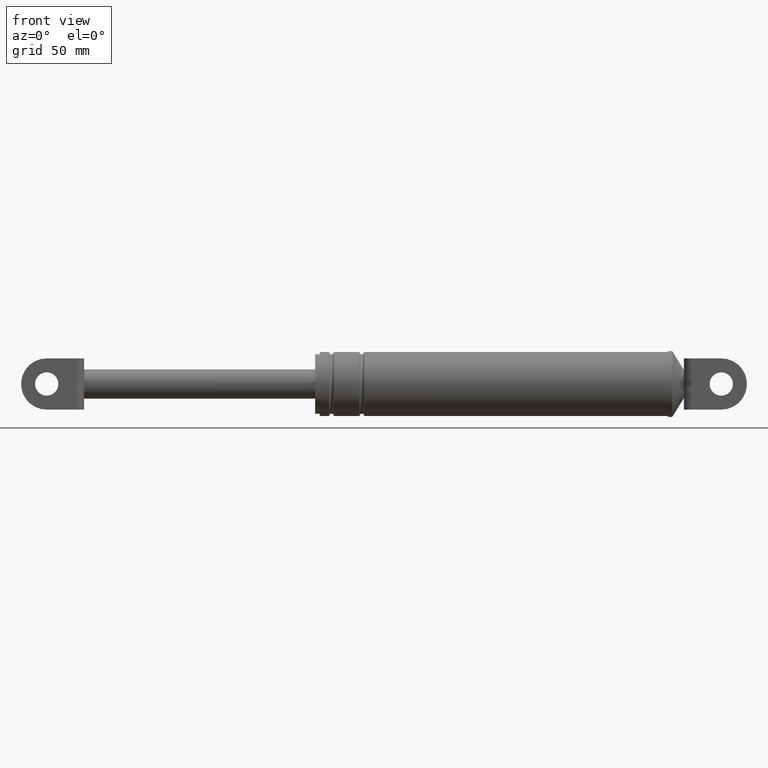
[diagram: clean part render]
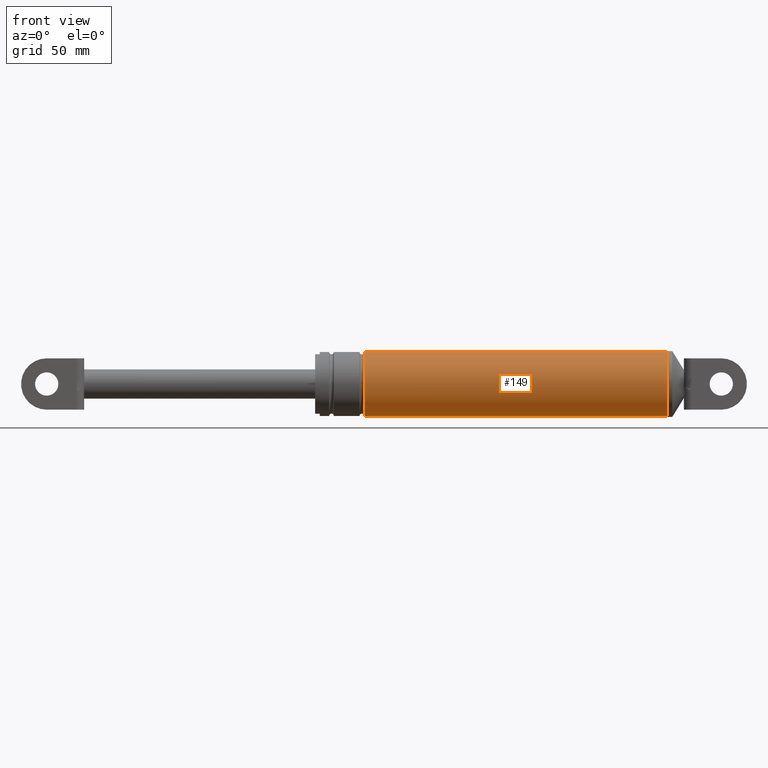
[diagram: same view with one face highlighted and labeled with its STEP entity id]
A machine part, front view. The second image highlights one B-rep face of the part: STEP entity #149.
In plain terms, the highlighted cylindrical surface (edge-blend (fillet) strip) has radius 13.7 mm, axis along (1, 0, 0).
Its self-contained STEP definition (entity closure, byte-faithful):
#149=ADVANCED_FACE('',(#553),#552,.T.);
#552=CYLINDRICAL_SURFACE('',#1208,1.37000000000E+001);
#553=FACE_OUTER_BOUND('',#1209,.T.);
#1205=CARTESIAN_POINT('',(0.00000000000E+000,0.00000000000E+000,1.91319381208E+002));
#1206=DIRECTION('',(1.00000000000E+000,-0.00000000000E+000,-0.00000000000E+000));
#1207=DIRECTION('',(0.00000000000E+000,0.00000000000E+000,-1.00000000000E+000));
#1208=AXIS2_PLACEMENT_3D('',#1205,#1206,#1207);
#1209=EDGE_LOOP('',(#1572,#1573,#1574,#1575));
#1572=ORIENTED_EDGE('',*,*,#1791,.F.);
#1573=ORIENTED_EDGE('',*,*,#1798,.T.);
#1574=ORIENTED_EDGE('',*,*,#1768,.T.);
#1575=ORIENTED_EDGE('',*,*,#1799,.F.);
#1768=EDGE_CURVE('',#2268,#2269,#2270,.T.);
#1791=EDGE_CURVE('',#2385,#2384,#2418,.T.);
#1798=EDGE_CURVE('',#2385,#2268,#2462,.T.);
#1799=EDGE_CURVE('',#2384,#2269,#2468,.T.);
#2268=VERTEX_POINT('',#3168);
#2269=VERTEX_POINT('',#3169);
#2270=CIRCLE('',#3173,1.37000000000E+001);
#2384=VERTEX_POINT('',#3236);
#2385=VERTEX_POINT('',#3237);
#2418=CIRCLE('',#3267,1.37000000000E+001);
#2462=(BOUNDED_CURVE() B_SPLINE_CURVE(1,(#3286,#3287),.UNSPECIFIED.,.F.,.F.) B_SPLINE_CURVE_WITH_KNOTS((2,2),(6.66666666042E-002,9.33333333304E-001),.UNSPECIFIED.) CURVE() GEOMETRIC_REPRESENTATION_ITEM() RATIONAL_B_SPLINE_CURVE((1.00000000000E+000,1.00000000000E+000)) REPRESENTATION_ITEM('') );
#2468=(BOUNDED_CURVE() B_SPLINE_CURVE(1,(#3288,#3289),.UNSPECIFIED.,.F.,.F.) B_SPLINE_CURVE_WITH_KNOTS((2,2),(6.66666666667E-002,9.33333333333E-001),.UNSPECIFIED.) CURVE() GEOMETRIC_REPRESENTATION_ITEM() RATIONAL_B_SPLINE_CURVE((7.50000000000E-001,7.50000000000E-001)) REPRESENTATION_ITEM('') );
#3168=CARTESIAN_POINT('',(3.25838615558E+002,0.00000000000E+000,1.77619381208E+002));
#3169=CARTESIAN_POINT('',(3.25838615558E+002,0.00000000000E+000,2.05019381208E+002));
#3170=CARTESIAN_POINT('',(3.25838615558E+002,0.00000000000E+000,1.91319381208E+002));
#3171=DIRECTION('',(-1.00000000000E+000,0.00000000000E+000,0.00000000000E+000));
#3172=DIRECTION('',(0.00000000000E+000,-1.22460635382E-016,1.00000000000E+000));
#3173=AXIS2_PLACEMENT_3D('',#3170,#3171,#3172);
#3236=CARTESIAN_POINT('',(1.95838615558E+002,0.00000000000E+000,2.05019381208E+002));
#3237=CARTESIAN_POINT('',(1.95838615558E+002,0.00000000000E+000,1.77619381208E+002));
#3264=CARTESIAN_POINT('',(1.95838615558E+002,0.00000000000E+000,1.91319381208E+002));
#3265=DIRECTION('',(-1.00000000000E+000,0.00000000000E+000,0.00000000000E+000));
#3266=DIRECTION('',(0.00000000000E+000,-1.22460635382E-016,1.00000000000E+000));
#3267=AXIS2_PLACEMENT_3D('',#3264,#3265,#3266);
#3286=CARTESIAN_POINT('',(1.95838615549E+002,0.00000000000E+000,1.77619381208E+002));
#3287=CARTESIAN_POINT('',(3.25838615554E+002,0.00000000000E+000,1.77619381208E+002));
#3288=CARTESIAN_POINT('',(1.95838615558E+002,-5.92118946467E-016,2.05019381208E+002));
#3289=CARTESIAN_POINT('',(3.25838615558E+002,-5.92118946467E-016,2.05019381208E+002));